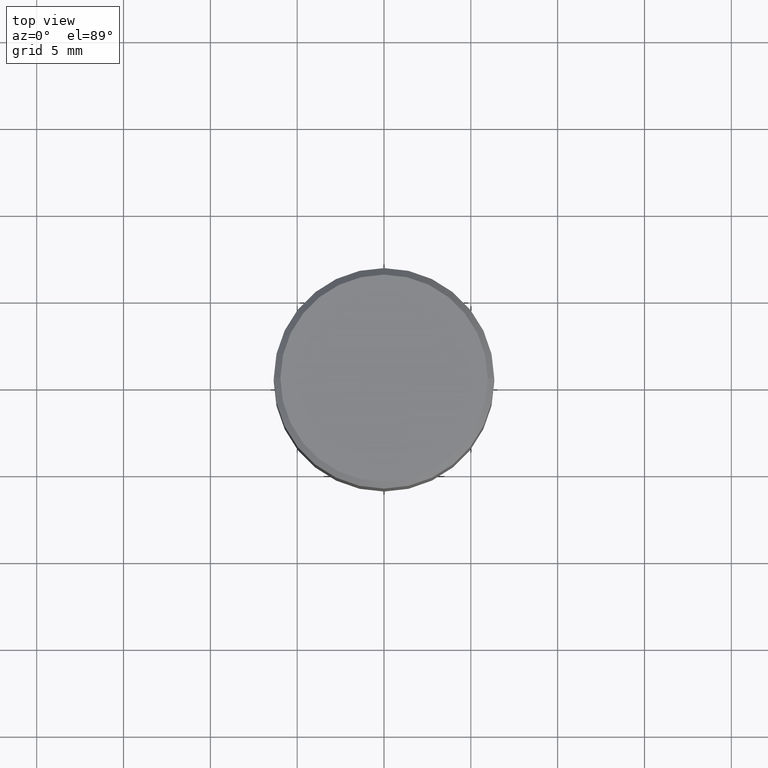
[diagram: clean part render]
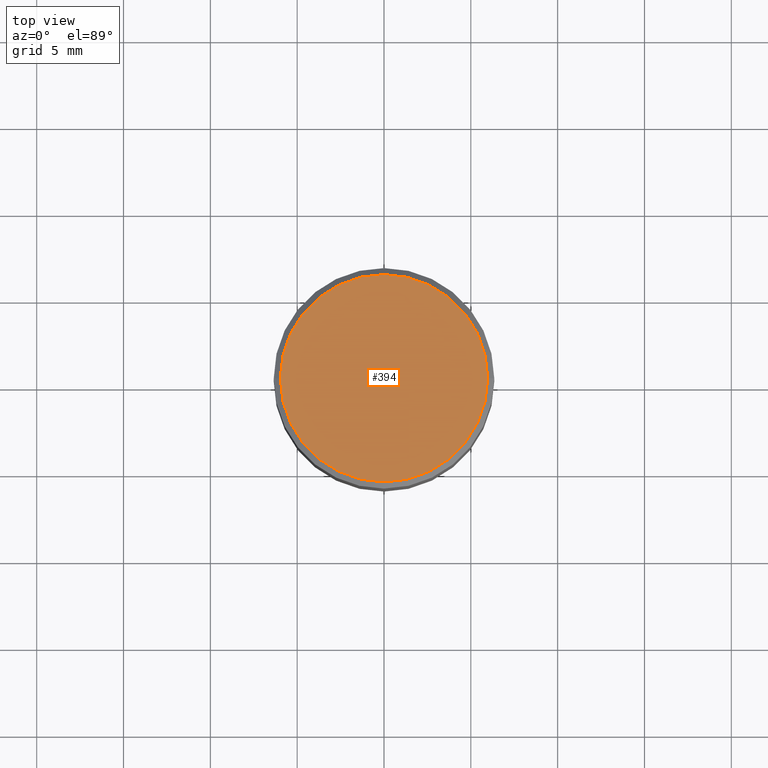
[diagram: same view with one face highlighted and labeled with its STEP entity id]
A machine part, top view. The second image highlights one B-rep face of the part: STEP entity #394.
In plain terms, the highlighted planar face has unit normal (0, -0, -1).
Its self-contained STEP definition (entity closure, byte-faithful):
#7 = CARTESIAN_POINT ( 'NONE',  ( 1.640996229256272519E-15, 0.2349999999999999867, -7.420662724610952803E-16 ) ) ;
#28 = DIRECTION ( 'NONE',  ( 1.000000000000000000, -6.982962677686267499E-15, 4.878549297894958458E-29 ) ) ;
#40 = DIRECTION ( 'NONE',  ( 2.438088387897960049E-29, -3.491481338843145188E-15, -1.000000000000000000 ) ) ;
#53 = EDGE_CURVE ( 'NONE', #74, #337, #82, .T. ) ;
#62 = CARTESIAN_POINT ( 'NONE',  ( -0.2349999999999999867, 1.667182339297596256E-15, 1.568636843340762393E-16 ) ) ;
#66 = ORIENTED_EDGE ( 'NONE', *, *, #217, .T. ) ;
#74 = VERTEX_POINT ( 'NONE', #99 ) ;
#82 = CIRCLE ( 'NONE', #315, 0.2349999999999999867 ) ;
#99 = CARTESIAN_POINT ( 'NONE',  ( 0.2349999999999999867, -1.689856874500919833E-15, 1.568636843340994368E-16 ) ) ;
#112 = PLANE ( 'NONE',  #392 ) ;
#140 = CIRCLE ( 'NONE', #267, 0.2349999999999999867 ) ;
#153 = DIRECTION ( 'NONE',  ( -1.000000000000000000, 6.982962677686265922E-15, -4.876176775795935793E-29 ) ) ;
#215 = DIRECTION ( 'NONE',  ( -2.445468806185136597E-29, 3.491481338843145583E-15, 1.000000000000000000 ) ) ;
#217 = EDGE_CURVE ( 'NONE', #337, #74, #140, .T. ) ;
#264 = EDGE_LOOP ( 'NONE', ( #66, #378 ) ) ;
#267 = AXIS2_PLACEMENT_3D ( 'NONE', #320, #324, #322 ) ;
#294 = FACE_OUTER_BOUND ( 'NONE', #264, .T. ) ;
#313 = CARTESIAN_POINT ( 'NONE',  ( -3.836052468622837406E-45, 5.476866265946494270E-31, 1.568636843340877764E-16 ) ) ;
#315 = AXIS2_PLACEMENT_3D ( 'NONE', #313, #215, #28 ) ;
#320 = CARTESIAN_POINT ( 'NONE',  ( -3.836052468622837406E-45, 5.476866265946494270E-31, 1.568636843340877764E-16 ) ) ;
#322 = DIRECTION ( 'NONE',  ( 1.000000000000000000, -6.982962677686267499E-15, 4.878549297894958458E-29 ) ) ;
#324 = DIRECTION ( 'NONE',  ( -2.445468806185136597E-29, 3.491481338843145583E-15, 1.000000000000000000 ) ) ;
#337 = VERTEX_POINT ( 'NONE', #62 ) ;
#378 = ORIENTED_EDGE ( 'NONE', *, *, #53, .T. ) ;
#392 = AXIS2_PLACEMENT_3D ( 'NONE', #7, #40, #153 ) ;
#394 = ADVANCED_FACE ( 'NONE', ( #294 ), #112, .F. ) ;